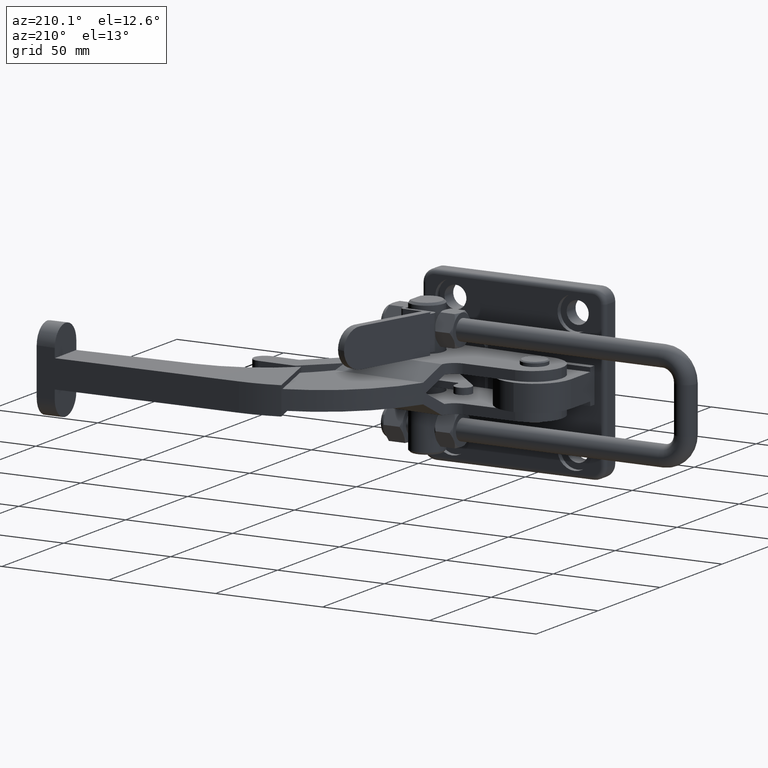
[diagram: clean part render]
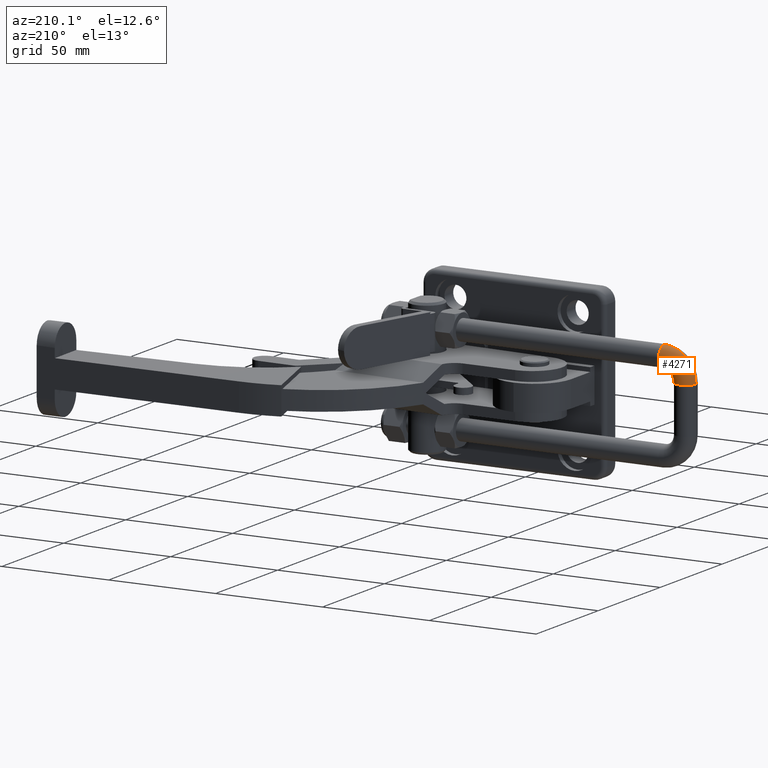
[diagram: same view with one face highlighted and labeled with its STEP entity id]
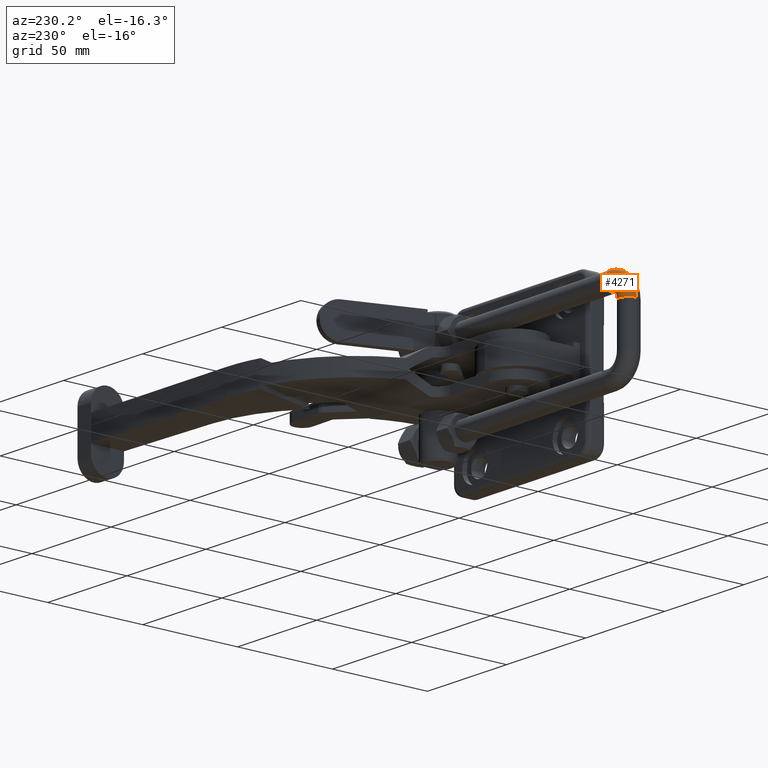
[diagram: same view with one face highlighted and labeled with its STEP entity id]
A machine part, auxiliary view. The second image highlights one B-rep face of the part: STEP entity #4271.
A second angle (auxiliary view) of the same face is appended — the face is thin or edge-on in the first view.
In plain terms, the highlighted toroidal blend (fillet) surface has major radius 10 mm and minor (blend) radius 4.8 mm.
Its self-contained STEP definition (entity closure, byte-faithful):
#1083 = CARTESIAN_POINT ( 'NONE',  ( -86.88310139669778200, 28.60400373359774300, 10.70000000000001400 ) ) ;
#1134 = CARTESIAN_POINT ( 'NONE',  ( -81.68333289743378600, 28.55493690099337600, 20.69999999999999600 ) ) ;
#1508 = CIRCLE ( 'NONE', #4276, 4.799999999999998900 ) ;
#1608 = CARTESIAN_POINT ( 'NONE',  ( -81.68333289743378600, 28.55493690099337600, 10.70000000000001200 ) ) ;
#1885 = EDGE_LOOP ( 'NONE', ( #6719, #9175, #3859, #10749 ) ) ;
#2049 = DIRECTION ( 'NONE',  ( 0.0000000000000000000, 0.0000000000000000000, 1.000000000000000000 ) ) ;
#2993 = AXIS2_PLACEMENT_3D ( 'NONE', #1608, #3416, #10758 ) ;
#3203 = VERTEX_POINT ( 'NONE', #4814 ) ;
#3416 = DIRECTION ( 'NONE',  ( 0.009435929346993528500, 0.9999554806276920200, -7.559293902062564000E-019 ) ) ;
#3477 = DIRECTION ( 'NONE',  ( 0.009435929346993528500, 0.9999554806276920200, -7.559293902062564000E-019 ) ) ;
#3529 = EDGE_CURVE ( 'NONE', #9384, #10128, #10235, .T. ) ;
#3695 = EDGE_CURVE ( 'NONE', #10128, #3203, #1508, .T. ) ;
#3859 = ORIENTED_EDGE ( 'NONE', *, *, #3695, .T. ) ;
#3901 = AXIS2_PLACEMENT_3D ( 'NONE', #8961, #3477, #9897 ) ;
#4044 = TOROIDAL_SURFACE ( 'NONE', #2993, 9.999999999999980500, 4.799999999999998000 ) ;
#4159 = CARTESIAN_POINT ( 'NONE',  ( -96.48267401072361300, 28.69458865532888600, 10.70000000000001000 ) ) ;
#4271 = ADVANCED_FACE ( 'NONE', ( #8899 ), #4044, .T. ) ;
#4276 = AXIS2_PLACEMENT_3D ( 'NONE', #1134, #7516, #2049 ) ;
#4673 = CARTESIAN_POINT ( 'NONE',  ( -91.68288770371069100, 28.64929619446331400, 10.70000000000001200 ) ) ;
#4814 = CARTESIAN_POINT ( 'NONE',  ( -81.68333289743378600, 28.55493690099337600, 15.89999999999999700 ) ) ;
#5232 = EDGE_CURVE ( 'NONE', #9384, #6641, #10183, .T. ) ;
#5458 = DIRECTION ( 'NONE',  ( 0.009435929346993528500, 0.9999554806276920200, -7.559293902062564000E-019 ) ) ;
#5588 = DIRECTION ( 'NONE',  ( -0.9999554806276921300, 0.009435929346993790500, -3.614007241618342900E-016 ) ) ;
#6337 = AXIS2_PLACEMENT_3D ( 'NONE', #10970, #5458, #11877 ) ;
#6641 = VERTEX_POINT ( 'NONE', #1083 ) ;
#6719 = ORIENTED_EDGE ( 'NONE', *, *, #5232, .F. ) ;
#6950 = CARTESIAN_POINT ( 'NONE',  ( -81.68333289743378600, 28.55493690099337600, 25.49999999999999600 ) ) ;
#6968 = AXIS2_PLACEMENT_3D ( 'NONE', #4673, #11105, #5588 ) ;
#7293 = CIRCLE ( 'NONE', #6337, 5.199999999999986000 ) ;
#7516 = DIRECTION ( 'NONE',  ( -0.9999554806276920200, 0.009435929346993528500, -5.287139328648773100E-016 ) ) ;
#8516 = EDGE_CURVE ( 'NONE', #6641, #3203, #7293, .T. ) ;
#8899 = FACE_OUTER_BOUND ( 'NONE', #1885, .T. ) ;
#8961 = CARTESIAN_POINT ( 'NONE',  ( -81.68333289743378600, 28.55493690099337600, 10.70000000000001200 ) ) ;
#9175 = ORIENTED_EDGE ( 'NONE', *, *, #3529, .T. ) ;
#9384 = VERTEX_POINT ( 'NONE', #4159 ) ;
#9897 = DIRECTION ( 'NONE',  ( -0.9999554806276919100, 0.009435929346993585800, 0.0000000000000000000 ) ) ;
#10128 = VERTEX_POINT ( 'NONE', #6950 ) ;
#10183 = CIRCLE ( 'NONE', #6968, 4.800000000000006900 ) ;
#10235 = CIRCLE ( 'NONE', #3901, 14.79999999999997400 ) ;
#10749 = ORIENTED_EDGE ( 'NONE', *, *, #8516, .F. ) ;
#10758 = DIRECTION ( 'NONE',  ( 7.132896317302137800E-021, 7.558957367042952600E-019, 1.000000000000000000 ) ) ;
#10970 = CARTESIAN_POINT ( 'NONE',  ( -81.68333289743378600, 28.55493690099337600, 10.70000000000001200 ) ) ;
#11105 = DIRECTION ( 'NONE',  ( 2.454189283855164300E-016, -3.071821814445882100E-018, -1.000000000000000000 ) ) ;
#11877 = DIRECTION ( 'NONE',  ( -0.9999554806276920200, 0.009435929346993830400, 0.0000000000000000000 ) ) ;